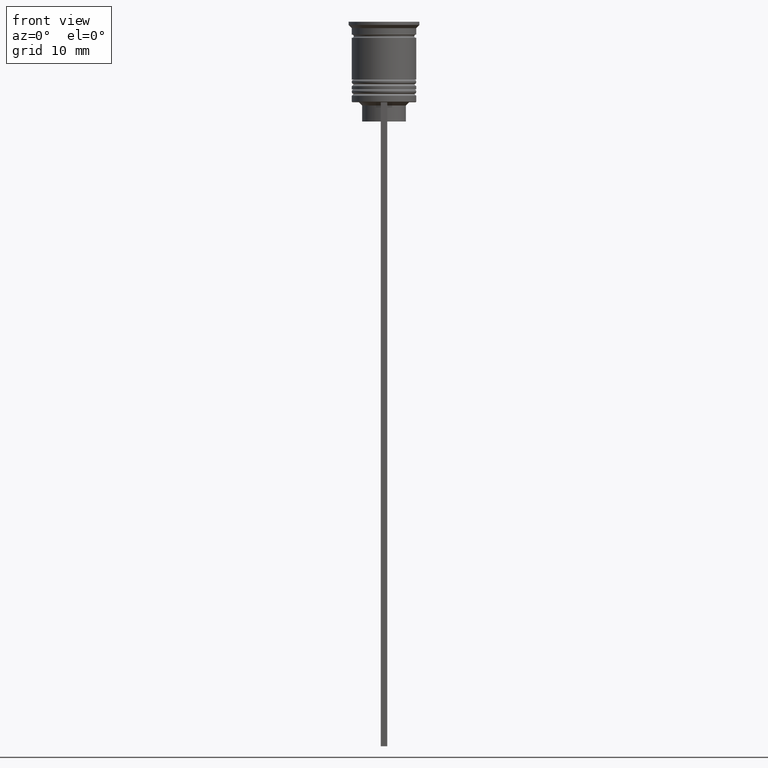
[diagram: clean part render]
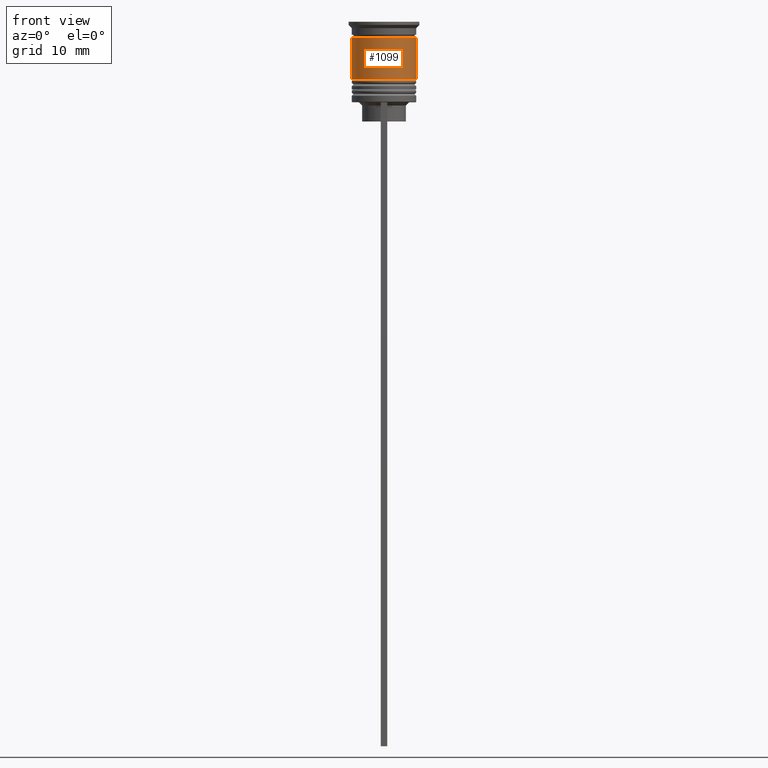
[diagram: same view with one face highlighted and labeled with its STEP entity id]
A machine part, front view. The second image highlights one B-rep face of the part: STEP entity #1099.
In plain terms, the highlighted cylindrical surface (edge-blend (fillet) strip) has radius 5 mm, axis along (-0, -0, 1).
Its self-contained STEP definition (entity closure, byte-faithful):
#83 = VERTEX_POINT ( 'NONE', #2279 ) ;
#195 = VERTEX_POINT ( 'NONE', #1557 ) ;
#208 = DIRECTION ( 'NONE',  ( 1.000000000000000000, 0.000000000000000000, 0.000000000000000000 ) ) ;
#221 = DIRECTION ( 'NONE',  ( 1.000000000000000000, 0.000000000000000000, 0.000000000000000000 ) ) ;
#301 = DIRECTION ( 'NONE',  ( -0.000000000000000000, -0.000000000000000000, 1.000000000000000000 ) ) ;
#307 = EDGE_CURVE ( 'NONE', #83, #195, #1424, .T. ) ;
#401 = CARTESIAN_POINT ( 'NONE',  ( 0.000000000000000000, 0.000000000000000000, 0.000000000000000000 ) ) ;
#535 = VERTEX_POINT ( 'NONE', #694 ) ;
#542 = EDGE_CURVE ( 'NONE', #535, #83, #1484, .T. ) ;
#548 = ORIENTED_EDGE ( 'NONE', *, *, #307, .F. ) ;
#562 = AXIS2_PLACEMENT_3D ( 'NONE', #401, #2580, #208 ) ;
#657 = CARTESIAN_POINT ( 'NONE',  ( 5.000000000000000888, 0.000000000000000000, -9.000000000000001776 ) ) ;
#694 = CARTESIAN_POINT ( 'NONE',  ( -5.000000000000000888, 6.123233995736767268E-16, -9.000000000000001776 ) ) ;
#722 = LINE ( 'NONE', #1285, #1731 ) ;
#793 = EDGE_LOOP ( 'NONE', ( #2432, #989, #2146, #548 ) ) ;
#876 = EDGE_CURVE ( 'NONE', #535, #2283, #1761, .T. ) ;
#989 = ORIENTED_EDGE ( 'NONE', *, *, #876, .T. ) ;
#1025 = DIRECTION ( 'NONE',  ( 1.000000000000000000, 0.000000000000000000, 0.000000000000000000 ) ) ;
#1036 = DIRECTION ( 'NONE',  ( -0.000000000000000000, -0.000000000000000000, 1.000000000000000000 ) ) ;
#1099 = ADVANCED_FACE ( 'NONE', ( #1616 ), #2186, .T. ) ;
#1173 = CARTESIAN_POINT ( 'NONE',  ( 0.000000000000000000, 0.000000000000000000, -2.500000000000000000 ) ) ;
#1285 = CARTESIAN_POINT ( 'NONE',  ( 5.000000000000000000, 0.000000000000000000, 0.000000000000000000 ) ) ;
#1324 = DIRECTION ( 'NONE',  ( -0.000000000000000000, -0.000000000000000000, 1.000000000000000000 ) ) ;
#1424 = CIRCLE ( 'NONE', #1717, 4.999999999999999112 ) ;
#1437 = CARTESIAN_POINT ( 'NONE',  ( 0.000000000000000000, 0.000000000000000000, -9.000000000000001776 ) ) ;
#1484 = LINE ( 'NONE', #2286, #2267 ) ;
#1557 = CARTESIAN_POINT ( 'NONE',  ( 4.999999999999999112, 0.000000000000000000, -2.500000000000000000 ) ) ;
#1616 = FACE_OUTER_BOUND ( 'NONE', #793, .T. ) ;
#1717 = AXIS2_PLACEMENT_3D ( 'NONE', #1173, #1979, #221 ) ;
#1731 = VECTOR ( 'NONE', #1324, 1000.000000000000000 ) ;
#1761 = CIRCLE ( 'NONE', #2180, 5.000000000000000888 ) ;
#1979 = DIRECTION ( 'NONE',  ( -0.000000000000000000, -0.000000000000000000, 1.000000000000000000 ) ) ;
#2065 = EDGE_CURVE ( 'NONE', #2283, #195, #722, .T. ) ;
#2146 = ORIENTED_EDGE ( 'NONE', *, *, #2065, .T. ) ;
#2180 = AXIS2_PLACEMENT_3D ( 'NONE', #1437, #1036, #1025 ) ;
#2186 = CYLINDRICAL_SURFACE ( 'NONE', #562, 5.000000000000000000 ) ;
#2267 = VECTOR ( 'NONE', #301, 1000.000000000000000 ) ;
#2279 = CARTESIAN_POINT ( 'NONE',  ( -4.999999999999999112, 6.123233995736766282E-16, -2.500000000000000000 ) ) ;
#2283 = VERTEX_POINT ( 'NONE', #657 ) ;
#2286 = CARTESIAN_POINT ( 'NONE',  ( -5.000000000000000000, 6.123233995736766282E-16, 0.000000000000000000 ) ) ;
#2432 = ORIENTED_EDGE ( 'NONE', *, *, #542, .F. ) ;
#2580 = DIRECTION ( 'NONE',  ( -0.000000000000000000, -0.000000000000000000, 1.000000000000000000 ) ) ;